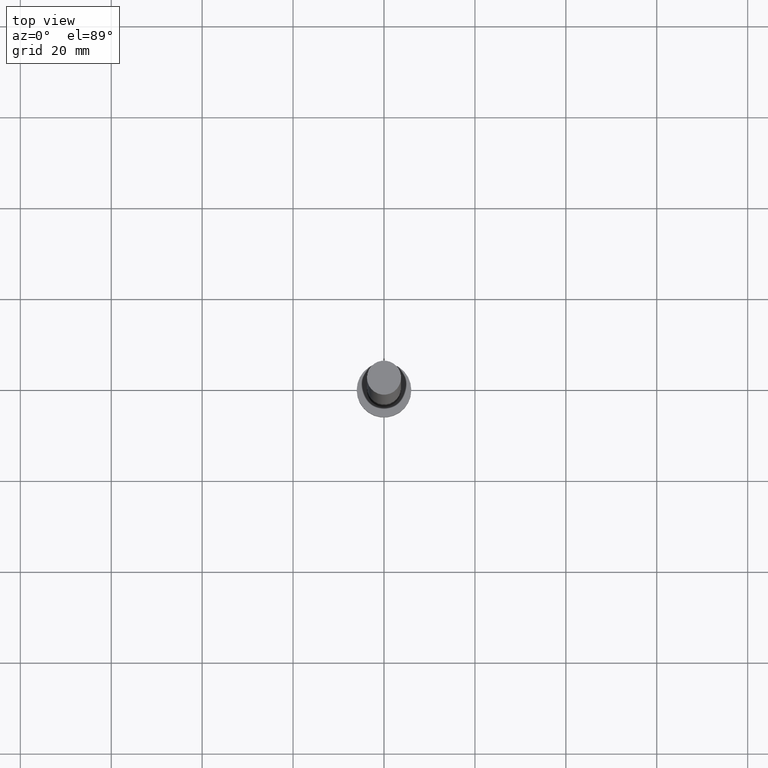
[diagram: clean part render]
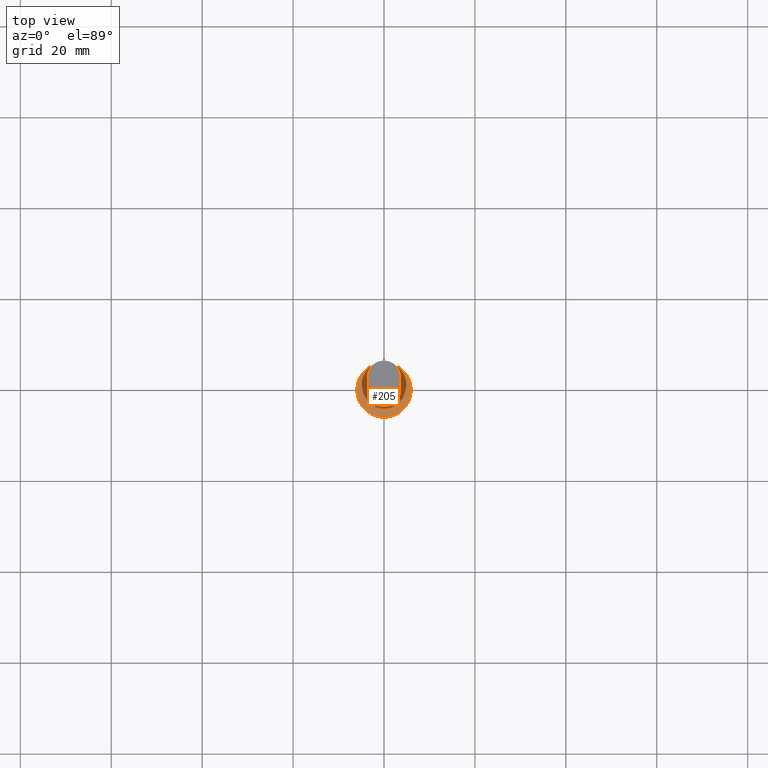
[diagram: same view with one face highlighted and labeled with its STEP entity id]
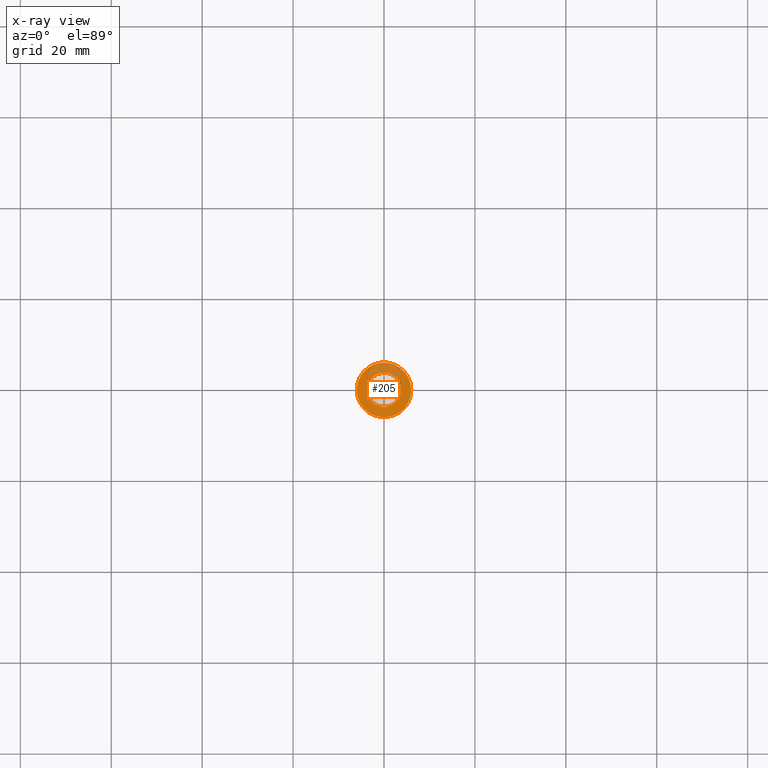
[diagram: x-ray of the same camera — body ghosted, the highlighted face saturated]
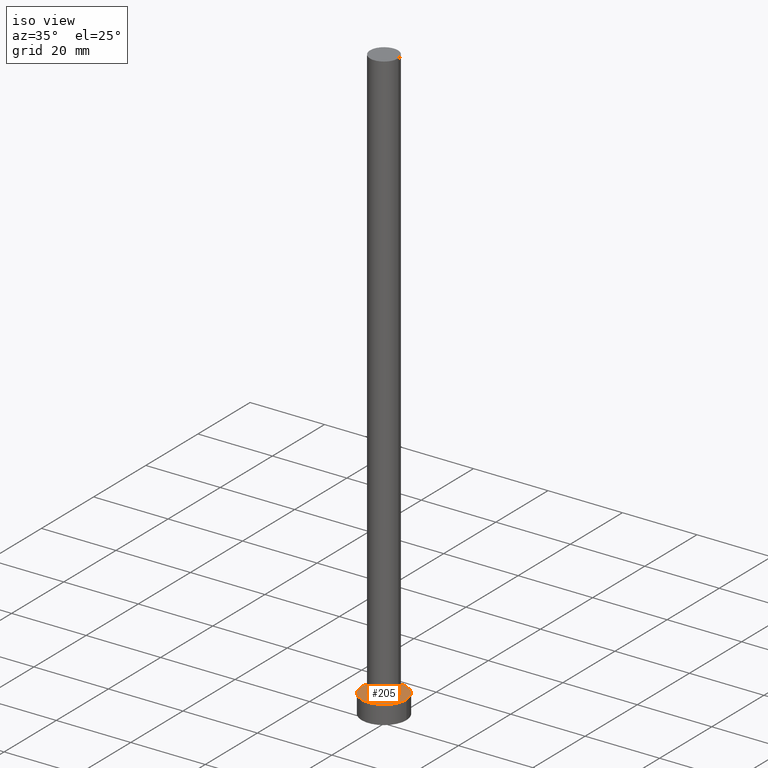
[diagram: same view with one face highlighted and labeled with its STEP entity id]
A machine part, top view. The second image highlights one B-rep face of the part: STEP entity #205.
The next image is the same camera in x-ray: the body ghosted, the highlighted face saturated — about 27% of this face is hidden behind the body in this view.
A second angle (iso view) of the same face is appended — the face is thin or edge-on in the first view.
In plain terms, the highlighted planar face has unit normal (0, 0, 1).
Its self-contained STEP definition (entity closure, byte-faithful):
#5 = CARTESIAN_POINT ( 'NONE',  ( 0.000000000000000000, 0.000000000000000000, 5.000000000000000000 ) ) ;
#6 = ORIENTED_EDGE ( 'NONE', *, *, #71, .T. ) ;
#13 = CARTESIAN_POINT ( 'NONE',  ( 0.000000000000000000, 0.000000000000000000, 5.000000000000000000 ) ) ;
#28 = CARTESIAN_POINT ( 'NONE',  ( 0.000000000000000000, 0.000000000000000000, 5.000000000000000000 ) ) ;
#30 = DIRECTION ( 'NONE',  ( 0.000000000000000000, 0.000000000000000000, 1.000000000000000000 ) ) ;
#48 = AXIS2_PLACEMENT_3D ( 'NONE', #13, #68, #156 ) ;
#49 = EDGE_CURVE ( 'NONE', #162, #91, #216, .T. ) ;
#54 = DIRECTION ( 'NONE',  ( 1.000000000000000000, 0.000000000000000000, 0.000000000000000000 ) ) ;
#63 = EDGE_CURVE ( 'NONE', #91, #162, #202, .T. ) ;
#68 = DIRECTION ( 'NONE',  ( 0.000000000000000000, 0.000000000000000000, 1.000000000000000000 ) ) ;
#71 = EDGE_CURVE ( 'NONE', #77, #247, #130, .T. ) ;
#77 = VERTEX_POINT ( 'NONE', #179 ) ;
#83 = AXIS2_PLACEMENT_3D ( 'NONE', #92, #98, #140 ) ;
#91 = VERTEX_POINT ( 'NONE', #222 ) ;
#92 = CARTESIAN_POINT ( 'NONE',  ( 0.000000000000000000, 0.000000000000000000, 5.000000000000000000 ) ) ;
#98 = DIRECTION ( 'NONE',  ( 0.000000000000000000, 0.000000000000000000, 1.000000000000000000 ) ) ;
#100 = CARTESIAN_POINT ( 'NONE',  ( 6.000000000000000888, 7.347880794884120722E-16, 5.000000000000000000 ) ) ;
#110 = AXIS2_PLACEMENT_3D ( 'NONE', #28, #30, #225 ) ;
#114 = ORIENTED_EDGE ( 'NONE', *, *, #49, .F. ) ;
#125 = EDGE_LOOP ( 'NONE', ( #204, #114 ) ) ;
#126 = CIRCLE ( 'NONE', #83, 6.000000000000000888 ) ;
#130 = CIRCLE ( 'NONE', #203, 6.000000000000000888 ) ;
#132 = EDGE_CURVE ( 'NONE', #247, #77, #126, .T. ) ;
#137 = DIRECTION ( 'NONE',  ( 0.000000000000000000, 0.000000000000000000, 1.000000000000000000 ) ) ;
#140 = DIRECTION ( 'NONE',  ( 1.000000000000000000, 0.000000000000000000, 0.000000000000000000 ) ) ;
#147 = PLANE ( 'NONE',  #110 ) ;
#148 = EDGE_LOOP ( 'NONE', ( #6, #255 ) ) ;
#152 = FACE_OUTER_BOUND ( 'NONE', #148, .T. ) ;
#156 = DIRECTION ( 'NONE',  ( 1.000000000000000000, 0.000000000000000000, 0.000000000000000000 ) ) ;
#159 = DIRECTION ( 'NONE',  ( 1.000000000000000000, 0.000000000000000000, 0.000000000000000000 ) ) ;
#162 = VERTEX_POINT ( 'NONE', #226 ) ;
#164 = FACE_BOUND ( 'NONE', #125, .T. ) ;
#173 = DIRECTION ( 'NONE',  ( 0.000000000000000000, 0.000000000000000000, 1.000000000000000000 ) ) ;
#179 = CARTESIAN_POINT ( 'NONE',  ( -6.000000000000000888, 0.000000000000000000, 5.000000000000000000 ) ) ;
#202 = CIRCLE ( 'NONE', #48, 3.750000000000000000 ) ;
#203 = AXIS2_PLACEMENT_3D ( 'NONE', #5, #173, #159 ) ;
#204 = ORIENTED_EDGE ( 'NONE', *, *, #63, .F. ) ;
#205 = ADVANCED_FACE ( 'NONE', ( #164, #152 ), #147, .T. ) ;
#216 = CIRCLE ( 'NONE', #244, 3.750000000000000000 ) ;
#222 = CARTESIAN_POINT ( 'NONE',  ( -3.750000000000000000, 0.000000000000000000, 5.000000000000000000 ) ) ;
#225 = DIRECTION ( 'NONE',  ( 1.000000000000000000, 0.000000000000000000, -0.000000000000000000 ) ) ;
#226 = CARTESIAN_POINT ( 'NONE',  ( 3.750000000000000000, 4.592425496802573972E-16, 5.000000000000000000 ) ) ;
#238 = CARTESIAN_POINT ( 'NONE',  ( 0.000000000000000000, 0.000000000000000000, 5.000000000000000000 ) ) ;
#244 = AXIS2_PLACEMENT_3D ( 'NONE', #238, #137, #54 ) ;
#247 = VERTEX_POINT ( 'NONE', #100 ) ;
#255 = ORIENTED_EDGE ( 'NONE', *, *, #132, .T. ) ;